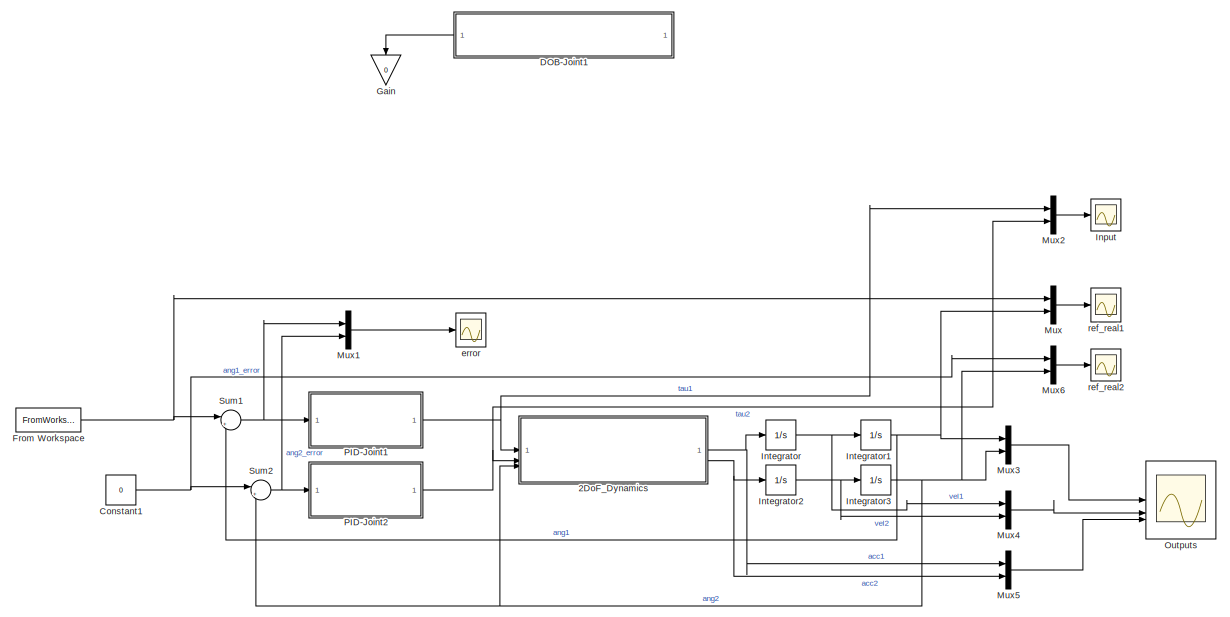
[diagram: root canvas - part 1/3, top center region]
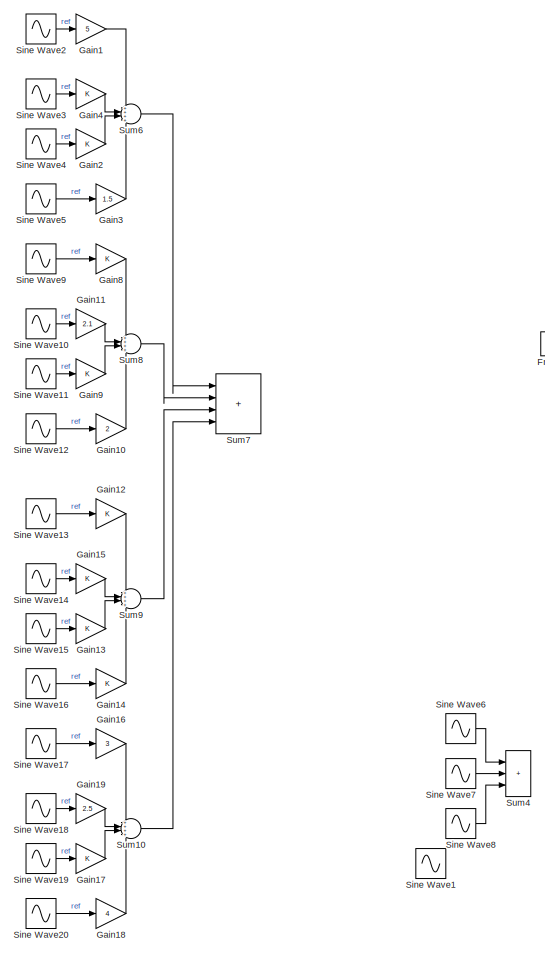
[diagram: root canvas - part 2/3, middle left region]
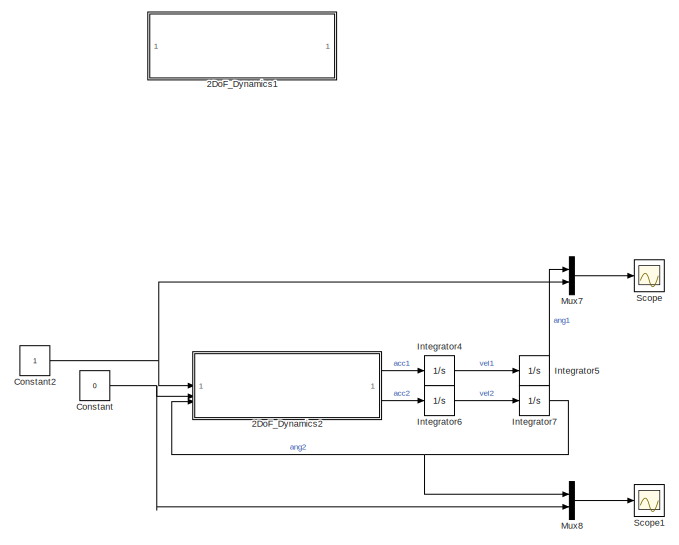
[diagram: root canvas - part 3/3, bottom center region]
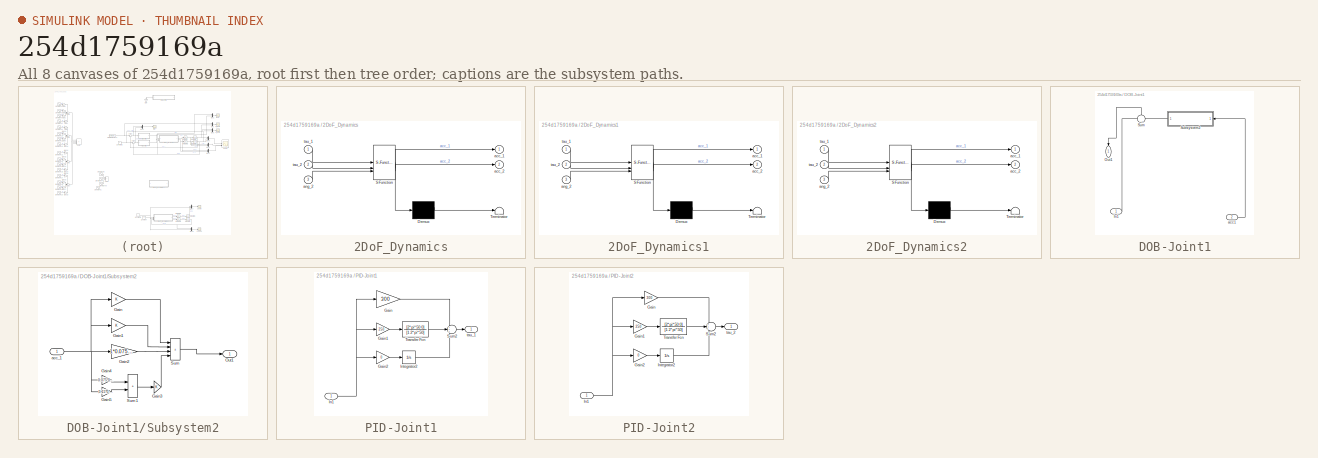
[diagram: thumbnail index - all 8 canvases of the model, root first then tree order]
MODEL slx_254d1759169a
KIND model
CONFIG AbsTol = auto
CONFIG EnableMultiTasking = off
CONFIG FixedStep = 0.0001
CONFIG MaxStep = auto
CONFIG MinStep = auto
CONFIG RelTol = 1e-3
CONFIG SampleTimeConstraint = Unconstrained
CONFIG SolverName = FixedStepAuto
CONFIG StartTime = 0.0
CONFIG StopTime = 10.0
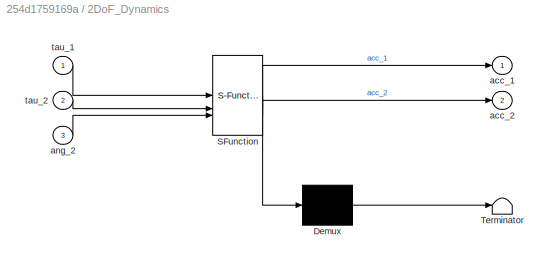
BLOCK [SubSystem] 2DoF_Dynamics
  ErrorFcn = Stateflow.Translate.translate
  PermitHierarchicalResolution = ExplicitOnly
  SFBlockType = MATLAB Function
  TreatAsAtomicUnit = on
BLOCK [Demux] 2DoF_Dynamics/ Demux 
  Outputs = 1
BLOCK [S-Function] 2DoF_Dynamics/ SFunction 
  EnableBusSupport = on
  FunctionName = sf_sfun
  PortCounts = [3 3]
  SFcnIsStateOwnerBlock = off
  SFunctionDeploymentMode = off
  Tag = Stateflow S-Function 2
BLOCK [Terminator] 2DoF_Dynamics/ Terminator 
BLOCK [Outport] 2DoF_Dynamics/acc_1
BLOCK [Outport] 2DoF_Dynamics/acc_2
  Port = 2
BLOCK [Inport] 2DoF_Dynamics/ang_2
  Port = 3
BLOCK [Inport] 2DoF_Dynamics/tau_1
BLOCK [Inport] 2DoF_Dynamics/tau_2
  Port = 2
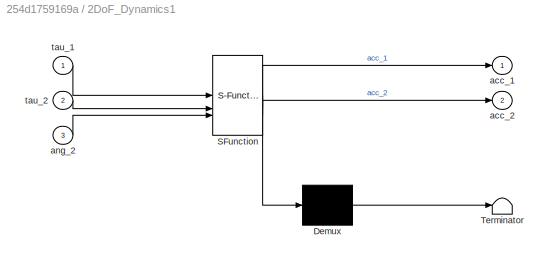
BLOCK [SubSystem] 2DoF_Dynamics1
  Commented = on
  ErrorFcn = Stateflow.Translate.translate
  PermitHierarchicalResolution = ExplicitOnly
  SFBlockType = MATLAB Function
  TreatAsAtomicUnit = on
BLOCK [Demux] 2DoF_Dynamics1/ Demux 
  Outputs = 1
BLOCK [S-Function] 2DoF_Dynamics1/ SFunction 
  EnableBusSupport = on
  FunctionName = sf_sfun
  PortCounts = [3 3]
  SFcnIsStateOwnerBlock = off
  SFunctionDeploymentMode = off
  Tag = Stateflow S-Function 1
BLOCK [Terminator] 2DoF_Dynamics1/ Terminator 
BLOCK [Outport] 2DoF_Dynamics1/acc_1
BLOCK [Outport] 2DoF_Dynamics1/acc_2
  Port = 2
BLOCK [Inport] 2DoF_Dynamics1/ang_2
  Port = 3
BLOCK [Inport] 2DoF_Dynamics1/tau_1
BLOCK [Inport] 2DoF_Dynamics1/tau_2
  Port = 2
BLOCK [SubSystem] 2DoF_Dynamics2
  Commented = on
  ErrorFcn = Stateflow.Translate.translate
  PermitHierarchicalResolution = ExplicitOnly
  SFBlockType = MATLAB Function
  TreatAsAtomicUnit = on
BLOCK [Demux] 2DoF_Dynamics2/ Demux 
  Outputs = 1
BLOCK [S-Function] 2DoF_Dynamics2/ SFunction 
  EnableBusSupport = on
  FunctionName = sf_sfun
  PortCounts = [3 3]
  SFcnIsStateOwnerBlock = off
  SFunctionDeploymentMode = off
  Tag = Stateflow S-Function 3
BLOCK [Terminator] 2DoF_Dynamics2/ Terminator 
BLOCK [Outport] 2DoF_Dynamics2/acc_1
BLOCK [Outport] 2DoF_Dynamics2/acc_2
  Port = 2
BLOCK [Inport] 2DoF_Dynamics2/ang_2
  Port = 3
BLOCK [Inport] 2DoF_Dynamics2/tau_1
BLOCK [Inport] 2DoF_Dynamics2/tau_2
  Port = 2
BLOCK [Constant] Constant
  Commented = on
  Value = 0
BLOCK [Constant] Constant1
  Value = 0
BLOCK [Constant] Constant2
  Commented = on
BLOCK [SubSystem] DOB-Joint1
  Commented = on
  PortSchema = {"entries":[{"content":{"sides":[{"content":{"connectorIds":["Out1","In1"]},"type":"ConnectorPlacement.EquallySpacedRectSide","uuid":"aed64ee6-890a-40cf-96da-aa5fbca5e20d"},{"content":{"connectorIds":["In2"],"side":"RIGHT"},"type":"ConnectorPlacement.EquallySpacedRectSide","uuid":"6cb1d59b-7b2e-4e62-91b9-34dc0f1a000d"},{"content":{"connectorIds":[],"side":"TOP"},"type":"ConnectorPlacement.EquallyS...<+390ch>
BLOCK [Inport] DOB-Joint1/In1
BLOCK [Outport] DOB-Joint1/Out1
  NameLocation = left
BLOCK [SubSystem] DOB-Joint1/Subsystem2
  NameLocation = top
BLOCK [Gain] DOB-Joint1/Subsystem2/Gain
BLOCK [Gain] DOB-Joint1/Subsystem2/Gain1
BLOCK [Gain] DOB-Joint1/Subsystem2/Gain2
  Gain = 1*0.075*0.075
BLOCK [Gain] DOB-Joint1/Subsystem2/Gain3
BLOCK [Gain] DOB-Joint1/Subsystem2/Gain4
  Gain = 0.075*0.075
BLOCK [Gain] DOB-Joint1/Subsystem2/Gain5
  Gain = 0.15*0.15
BLOCK [Outport] DOB-Joint1/Subsystem2/Out1
BLOCK [Sum] DOB-Joint1/Subsystem2/Sum
  IconShape = rectangular
  Inputs = ++++
BLOCK [Sum] DOB-Joint1/Subsystem2/Sum1
  IconShape = rectangular
BLOCK [Inport] DOB-Joint1/Subsystem2/acc_1
BLOCK [Sum] DOB-Joint1/Sum
  Inputs = -+
  NameLocation = right
BLOCK [Inport] DOB-Joint1/acc1
  Port = 2
BLOCK [FromWorkspace] From Workspace
  OutDataTypeStr = double
  SampleTime = 0.001
  VariableName = q_opt_tw
BLOCK [Gain] Gain
  Commented = on
  Gain = 0
  NameLocation = left
BLOCK [Gain] Gain1
  Commented = on
  Gain = 5
BLOCK [Gain] Gain10
  Commented = on
  Gain = 2
BLOCK [Gain] Gain11
  Commented = on
  Gain = 2.1
BLOCK [Gain] Gain12
  Commented = on
BLOCK [Gain] Gain13
  Commented = on
BLOCK [Gain] Gain14
  Commented = on
BLOCK [Gain] Gain15
  Commented = on
BLOCK [Gain] Gain16
  Commented = on
  Gain = 3
BLOCK [Gain] Gain17
  Commented = on
BLOCK [Gain] Gain18
  Commented = on
  Gain = 4
BLOCK [Gain] Gain19
  Commented = on
  Gain = 2.5
BLOCK [Gain] Gain2
  Commented = on
BLOCK [Gain] Gain3
  Commented = on
  Gain = 1.5
BLOCK [Gain] Gain4
  Commented = on
BLOCK [Gain] Gain8
  Commented = on
BLOCK [Gain] Gain9
  Commented = on
BLOCK [Scope] Input
  Floating = off
  NumInputPorts = 1
  ScopeSpecificationString = Simulink.scopes.TimeScopeBlockCfg('CurrentConfiguration', extmgr.ConfigurationSet(extmgr.Configuration('Core','General UI',true),extmgr.Configuration('Core','Source UI',true),extmgr.Configuration('Sources','WiredSimulink',true,'SampleTime','.001','DataLoggingVariableName','ScopeData2','DataLogging',true),extmgr.Configuration('Visuals','Time Domain',true,'SerializedDisplays',{struct('MinYLimReal','...<+1523ch>
BLOCK [Integrator] Integrator
BLOCK [Integrator] Integrator1
BLOCK [Integrator] Integrator2
BLOCK [Integrator] Integrator3
BLOCK [Integrator] Integrator4
  Commented = on
BLOCK [Integrator] Integrator5
  Commented = on
BLOCK [Integrator] Integrator6
  Commented = on
BLOCK [Integrator] Integrator7
  Commented = on
BLOCK [Mux] Mux
  DisplayOption = bar
  Inputs = 2
BLOCK [Mux] Mux1
  DisplayOption = bar
  Inputs = 2
BLOCK [Mux] Mux2
  DisplayOption = bar
  Inputs = 2
BLOCK [Mux] Mux3
  DisplayOption = bar
  Inputs = 2
BLOCK [Mux] Mux4
  DisplayOption = bar
  Inputs = 2
BLOCK [Mux] Mux5
  DisplayOption = bar
  Inputs = 2
BLOCK [Mux] Mux6
  DisplayOption = bar
  Inputs = 2
BLOCK [Mux] Mux7
  Commented = on
  DisplayOption = bar
  Inputs = 2
BLOCK [Mux] Mux8
  Commented = on
  DisplayOption = bar
  Inputs = 2
BLOCK [Scope] Outputs
  Floating = off
  NumInputPorts = 3
  ScopeSpecificationString = Simulink.scopes.TimeScopeBlockCfg('CurrentConfiguration', extmgr.ConfigurationSet(extmgr.Configuration('Core','General UI',true),extmgr.Configuration('Core','Source UI',true),extmgr.Configuration('Sources','WiredSimulink',true,'SampleTime','.001','DataLogging',true),extmgr.Configuration('Visuals','Time Domain',true,'SerializedDisplays',{struct('MinYLimReal','-0.66048','MaxYLimReal','0.65909','YLab...<+2740ch>
BLOCK [SubSystem] PID-Joint1
BLOCK [Gain] PID-Joint1/Gain
  Gain = 300
BLOCK [Gain] PID-Joint1/Gain1
  Gain = 250
BLOCK [Gain] PID-Joint1/Gain2
  Commented = on
  Gain = 0
BLOCK [Inport] PID-Joint1/In1
BLOCK [Integrator] PID-Joint1/Integrator2
  Commented = on
BLOCK [Sum] PID-Joint1/Sum2
  Inputs = +++
BLOCK [TransferFcn] PID-Joint1/Transfer Fcn
  Denominator = [1 2*pi*50]
  Numerator = [2*pi*50 0]
BLOCK [Outport] PID-Joint1/tau_1
BLOCK [SubSystem] PID-Joint2
BLOCK [Gain] PID-Joint2/Gain
  Gain = 300
BLOCK [Gain] PID-Joint2/Gain1
  Gain = 250
BLOCK [Gain] PID-Joint2/Gain2
  Commented = on
  Gain = 0
BLOCK [Inport] PID-Joint2/In1
BLOCK [Integrator] PID-Joint2/Integrator2
  Commented = on
BLOCK [Sum] PID-Joint2/Sum2
  Inputs = +++
BLOCK [TransferFcn] PID-Joint2/Transfer Fcn
  Denominator = [1 2*pi*50]
  Numerator = [2*pi*50 0]
BLOCK [Outport] PID-Joint2/tau_2
BLOCK [Scope] Scope
  Commented = on
  Floating = off
  NumInputPorts = 1
  ScopeSpecificationString = Simulink.scopes.TimeScopeBlockCfg('CurrentConfiguration', extmgr.ConfigurationSet(extmgr.Configuration('Core','General UI',true),extmgr.Configuration('Core','Source UI',true),extmgr.Configuration('Sources','WiredSimulink',true,'DataLoggingVariableName','ScopeData1'),extmgr.Configuration('Visuals','Time Domain',true,'SerializedDisplays',{struct('MinYLimReal','-2767.45862','MaxYLimReal','5151.12972'...<+1446ch>
BLOCK [Scope] Scope1
  Commented = on
  Floating = off
  NumInputPorts = 1
  ScopeSpecificationString = Simulink.scopes.TimeScopeBlockCfg('CurrentConfiguration', extmgr.ConfigurationSet(extmgr.Configuration('Core','General UI',true),extmgr.Configuration('Core','Source UI',true),extmgr.Configuration('Sources','WiredSimulink',true,'DataLoggingVariableName','ScopeData2'),extmgr.Configuration('Visuals','Time Domain',true,'SerializedDisplays',{struct('MinYLimReal','-25.66832','MaxYLimReal','187.93619','Y...<+1430ch>
BLOCK [Sin] Sine Wave1
  Amplitude = 30*(pi/180)
  Commented = on
  Frequency = 2*pi*0.5
  SampleTime = 0
BLOCK [Sin] Sine Wave10
  Amplitude = 1*(pi/180)
  Commented = on
  Frequency = 0.6*2*pi
  SampleTime = 0
BLOCK [Sin] Sine Wave11
  Amplitude = 2.1*(pi/180)
  Commented = on
  Frequency = 0.7*2*pi
  SampleTime = 0
BLOCK [Sin] Sine Wave12
  Amplitude = 2.2*(pi/180)
  Commented = on
  Frequency = 0.8*2*pi
  SampleTime = 0
BLOCK [Sin] Sine Wave13
  Amplitude = 2*(pi/180)
  Commented = on
  Frequency = 0.9*2*pi
  SampleTime = 0
BLOCK [Sin] Sine Wave14
  Amplitude = 1.9*(pi/180)
  Commented = on
  Frequency = 1*2*pi
  SampleTime = 0
BLOCK [Sin] Sine Wave15
  Amplitude = 1.8*(pi/180)
  Commented = on
  Frequency = 1.1*2*pi
  SampleTime = 0
BLOCK [Sin] Sine Wave16
  Amplitude = 1.7*(pi/180)
  Commented = on
  Frequency = 1.2*2*pi
  SampleTime = 0
BLOCK [Sin] Sine Wave17
  Amplitude = 1.6*(pi/180)
  Commented = on
  Frequency = 1.3*2*pi
  SampleTime = 0
BLOCK [Sin] Sine Wave18
  Amplitude = 1.5*(pi/180)
  Commented = on
  Frequency = 1.4*2*pi
  SampleTime = 0
BLOCK [Sin] Sine Wave19
  Amplitude = 1.3*(pi/180)
  Commented = on
  Frequency = 1.5*2*pi
  SampleTime = 0
BLOCK [Sin] Sine Wave2
  Amplitude = 1*(pi/180)
  Commented = on
  Frequency = 0.1*2*pi
  SampleTime = 0
BLOCK [Sin] Sine Wave20
  Amplitude = 1.2*(pi/180)
  Commented = on
  Frequency = 1.5*2*pi
  SampleTime = 0
BLOCK [Sin] Sine Wave3
  Amplitude = 1.1*(pi/180)
  Commented = on
  Frequency = 0.2*2*pi
  SampleTime = 0
BLOCK [Sin] Sine Wave4
  Amplitude = 2.4*(pi/180)
  Commented = on
  Frequency = 0.3*2*pi
  SampleTime = 0
BLOCK [Sin] Sine Wave5
  Amplitude = 2.5*(pi/180)
  Commented = on
  Frequency = 0.4*2*pi
  SampleTime = 0
BLOCK [Sin] Sine Wave6
  Amplitude = 10*(pi/180)
  Commented = on
  Frequency = 1*2*pi
  SampleTime = 0
BLOCK [Sin] Sine Wave7
  Amplitude = 20*(pi/180)
  Commented = on
  Frequency = 0.8*2*pi
  SampleTime = 0
BLOCK [Sin] Sine Wave8
  Amplitude = 2*(pi/180)
  Commented = on
  Frequency = 0.5*2*pi
  SampleTime = 0
BLOCK [Sin] Sine Wave9
  Amplitude = 2.3*(pi/180)
  Commented = on
  Frequency = 0.5*2*pi
  SampleTime = 0
BLOCK [Sum] Sum1
  Inputs = |+-
BLOCK [Sum] Sum10
  Commented = on
  Inputs = ++++
BLOCK [Sum] Sum2
  Inputs = |+-
BLOCK [Sum] Sum4
  Commented = on
  IconShape = rectangular
  Inputs = +++
BLOCK [Sum] Sum6
  Commented = on
  Inputs = ++++
BLOCK [Sum] Sum7
  Commented = on
  IconShape = rectangular
  Inputs = |++++
BLOCK [Sum] Sum8
  Commented = on
  Inputs = ++++
BLOCK [Sum] Sum9
  Commented = on
  Inputs = ++++
BLOCK [Scope] error
  Floating = off
  NumInputPorts = 1
  ScopeSpecificationString = Simulink.scopes.TimeScopeBlockCfg('CurrentConfiguration', extmgr.ConfigurationSet(extmgr.Configuration('Core','General UI',true),extmgr.Configuration('Core','Source UI',true),extmgr.Configuration('Sources','WiredSimulink',true,'SampleTime','.001','DataLoggingVariableName','ScopeData2'),extmgr.Configuration('Visuals','Time Domain',true,'SerializedDisplays',{struct('MinYLimReal','-0.43106','MaxYLimR...<+1477ch>
BLOCK [Scope] ref_real1
  Floating = off
  NumInputPorts = 1
  ScopeSpecificationString = Simulink.scopes.TimeScopeBlockCfg('CurrentConfiguration', extmgr.ConfigurationSet(extmgr.Configuration('Core','General UI',true),extmgr.Configuration('Core','Source UI',true),extmgr.Configuration('Sources','WiredSimulink',true,'SampleTime','.001','DataLoggingVariableName','ScopeData1'),extmgr.Configuration('Visuals','Time Domain',true,'SerializedDisplays',{struct('MinYLimReal','-0.66793','MaxYLimR...<+1554ch>
BLOCK [Scope] ref_real2
  Floating = off
  NumInputPorts = 1
  ScopeSpecificationString = Simulink.scopes.TimeScopeBlockCfg('CurrentConfiguration', extmgr.ConfigurationSet(extmgr.Configuration('Core','General UI',true),extmgr.Configuration('Core','Source UI',true),extmgr.Configuration('Sources','WiredSimulink',true,'SampleTime','.001','DataLoggingVariableName','ScopeData4'),extmgr.Configuration('Visuals','Time Domain',true,'SerializedDisplays',{struct('MinYLimReal','-0.66268','MaxYLimR...<+1488ch>
LINE 2DoF_Dynamics2:1 -> Integrator4:1
LINE 2DoF_Dynamics2:2 -> Integrator6:1
NET 2DoF_Dynamics:1 -> Integrator:1, Mux5:1
NET 2DoF_Dynamics:2 -> Integrator2:1, Mux5:2
NET Constant1:1 -> Mux6:1, Sum2:1
NET Constant2:1 -> 2DoF_Dynamics2:1, Mux7:2
NET Constant:1 -> 2DoF_Dynamics2:2, Mux8:2
LINE DOB-Joint1/In1:1 -> DOB-Joint1/Sum:1
LINE DOB-Joint1/Subsystem2/Gain1:1 -> DOB-Joint1/Subsystem2/Sum:2
LINE DOB-Joint1/Subsystem2/Gain2:1 -> DOB-Joint1/Subsystem2/Sum:3
LINE DOB-Joint1/Subsystem2/Gain3:1 -> DOB-Joint1/Subsystem2/Sum:4
LINE DOB-Joint1/Subsystem2/Gain4:1 -> DOB-Joint1/Subsystem2/Sum1:1
LINE DOB-Joint1/Subsystem2/Gain5:1 -> DOB-Joint1/Subsystem2/Sum1:2
LINE DOB-Joint1/Subsystem2/Gain:1 -> DOB-Joint1/Subsystem2/Sum:1
LINE DOB-Joint1/Subsystem2/Sum1:1 -> DOB-Joint1/Subsystem2/Gain3:1
LINE DOB-Joint1/Subsystem2/Sum:1 -> DOB-Joint1/Subsystem2/Out1:1
NET DOB-Joint1/Subsystem2/acc_1:1 -> DOB-Joint1/Subsystem2/Gain1:1, DOB-Joint1/Subsystem2/Gain2:1, DOB-Joint1/Subsystem2/Gain4:1, DOB-Joint1/Subsystem2/Gain5:1, DOB-Joint1/Subsystem2/Gain:1
LINE DOB-Joint1/Subsystem2:1 -> DOB-Joint1/Sum:2
LINE DOB-Joint1/Sum:1 -> DOB-Joint1/Out1:1
LINE DOB-Joint1/acc1:1 -> DOB-Joint1/Subsystem2:1
LINE DOB-Joint1:1 -> Gain:1
NET From Workspace:1 -> Mux:1, Sum1:1
LINE Gain10:1 -> Sum8:4
LINE Gain11:1 -> Sum8:2
LINE Gain12:1 -> Sum9:1
LINE Gain13:1 -> Sum9:3
LINE Gain14:1 -> Sum9:4
LINE Gain15:1 -> Sum9:2
LINE Gain16:1 -> Sum10:1
LINE Gain17:1 -> Sum10:3
LINE Gain18:1 -> Sum10:4
LINE Gain19:1 -> Sum10:2
LINE Gain1:1 -> Sum6:1
LINE Gain2:1 -> Sum6:3
LINE Gain3:1 -> Sum6:4
LINE Gain4:1 -> Sum6:2
LINE Gain8:1 -> Sum8:1
LINE Gain9:1 -> Sum8:3
NET Integrator1:1 -> Mux3:1, Mux:2, Sum1:2
NET Integrator2:1 -> Integrator3:1, Mux4:2
NET Integrator3:1 -> 2DoF_Dynamics:3, Mux3:2, Mux6:2, Sum2:2
LINE Integrator4:1 -> Integrator5:1
LINE Integrator5:1 -> Mux7:1
LINE Integrator6:1 -> Integrator7:1
NET Integrator7:1 -> 2DoF_Dynamics2:3, Mux8:1
NET Integrator:1 -> Integrator1:1, Mux4:1
LINE Mux1:1 -> error:1
LINE Mux2:1 -> Input:1
LINE Mux3:1 -> Outputs:1
LINE Mux4:1 -> Outputs:2
LINE Mux5:1 -> Outputs:3
LINE Mux6:1 -> ref_real2:1
LINE Mux7:1 -> Scope:1
LINE Mux8:1 -> Scope1:1
LINE Mux:1 -> ref_real1:1
LINE PID-Joint1/Gain1:1 -> PID-Joint1/Transfer Fcn:1
LINE PID-Joint1/Gain2:1 -> PID-Joint1/Integrator2:1
LINE PID-Joint1/Gain:1 -> PID-Joint1/Sum2:1
NET PID-Joint1/In1:1 -> PID-Joint1/Gain1:1, PID-Joint1/Gain2:1, PID-Joint1/Gain:1
LINE PID-Joint1/Integrator2:1 -> PID-Joint1/Sum2:3
LINE PID-Joint1/Sum2:1 -> PID-Joint1/tau_1:1
LINE PID-Joint1/Transfer Fcn:1 -> PID-Joint1/Sum2:2
NET PID-Joint1:1 -> 2DoF_Dynamics:1, Mux2:1
LINE PID-Joint2/Gain1:1 -> PID-Joint2/Transfer Fcn:1
LINE PID-Joint2/Gain2:1 -> PID-Joint2/Integrator2:1
LINE PID-Joint2/Gain:1 -> PID-Joint2/Sum2:1
NET PID-Joint2/In1:1 -> PID-Joint2/Gain1:1, PID-Joint2/Gain2:1, PID-Joint2/Gain:1
LINE PID-Joint2/Integrator2:1 -> PID-Joint2/Sum2:3
LINE PID-Joint2/Sum2:1 -> PID-Joint2/tau_2:1
LINE PID-Joint2/Transfer Fcn:1 -> PID-Joint2/Sum2:2
NET PID-Joint2:1 -> 2DoF_Dynamics:2, Mux2:2
LINE Sine Wave10:1 -> Gain11:1
LINE Sine Wave11:1 -> Gain9:1
LINE Sine Wave12:1 -> Gain10:1
LINE Sine Wave13:1 -> Gain12:1
LINE Sine Wave14:1 -> Gain15:1
LINE Sine Wave15:1 -> Gain13:1
LINE Sine Wave16:1 -> Gain14:1
LINE Sine Wave17:1 -> Gain16:1
LINE Sine Wave18:1 -> Gain19:1
LINE Sine Wave19:1 -> Gain17:1
LINE Sine Wave20:1 -> Gain18:1
LINE Sine Wave2:1 -> Gain1:1
LINE Sine Wave3:1 -> Gain4:1
LINE Sine Wave4:1 -> Gain2:1
LINE Sine Wave5:1 -> Gain3:1
LINE Sine Wave6:1 -> Sum4:1
LINE Sine Wave7:1 -> Sum4:2
LINE Sine Wave8:1 -> Sum4:3
LINE Sine Wave9:1 -> Gain8:1
LINE Sum10:1 -> Sum7:4
NET Sum1:1 -> Mux1:1, PID-Joint1:1
NET Sum2:1 -> Mux1:2, PID-Joint2:1
LINE Sum6:1 -> Sum7:1
LINE Sum8:1 -> Sum7:2
LINE Sum9:1 -> Sum7:3
note: NET lines group one-source signal fan-out (src -> all destinations, sorted); 1:1 wires keep LINE
CHART 2DoF_Dynamics1 states=1 transitions=1
  STATE_LABEL 'eML_blk_kernel()'
  STATE_LABEL 'SCRIPT:\nfunction [acc_1, acc_2] = TDoF_Dynamics_func(tau_1, tau_2, ang_2)\n    % Parameters\n    J1 = 1;\n    J2 = 1;\n    l1 = 0.15;\n    m2 = 1;\n    d1 = 0.075;\n    d2 = 0.075;\n    \n    D = (J2+m2*d2^2)*(J1+J2+m2*d1^2+m2*(2*l1*d2*cos(ang_2)+l1^2+d2^2))-(J2+m2*(l1*d2*cos(ang_2)+d2^2))^2;\n    \n    acc_1 = ((J2+m2*d2^2)*tau_1+(-J2-m2*(l1*d2*cos(ang_2)+d2^2))*tau_2)/D;\n    acc_2 = ((-J2-m2*(l1*d2*cos(ang...<+80ch>'
CHART 2DoF_Dynamics states=1 transitions=1
  STATE_LABEL 'eML_blk_kernel()'
  STATE_LABEL 'SCRIPT:\nfunction [acc_1, acc_2] = TDoF_Dynamics_func(tau_1, tau_2, ang_2)\n    % Parameters\n    J1 = 1;\n    J2 = 1;\n    l1 = 0.15;\n    m2 = 1;\n    d1 = 0.075;\n    d2 = 0.075;\n    \n    D = (J2+m2*d2^2)*(J1+J2+m2*d1^2+m2*(2*l1*d2*cos(ang_2)+l1^2+d2^2))-(J2+m2*(l1*d2*cos(ang_2)+d2^2))^2;\n    \n    acc_1 = ((J2+m2*d2^2)*tau_1+(-J2-m2*(l1*d2*cos(ang_2)+d2^2))*tau_2)/D;\n    acc_2 = ((-J2-m2*(l1*d2*cos(ang...<+80ch>'
CHART 2DoF_Dynamics2 states=1 transitions=1
  STATE_LABEL 'eML_blk_kernel()'
  STATE_LABEL 'SCRIPT:\nfunction [acc_1, acc_2] = TDoF_Dynamics_func(tau_1, tau_2, ang_2)\n    % Parameters\n    J1 = 1;\n    J2 = 1;\n    m2 = 1;\n\n    l1 = 0.15;\n    d2 = 0.075;\n    \n    D = J2*(J1*J2+m2*l1^2+2*m2*l1*d2*cos(ang_2))-(J2+m2*l1*d2*cos(ang_2))^2;\n    \n    acc_1 = (J2*tau_1+(-J2-m2*l1*d2*cos(ang_2))*tau_2)/D;\n    acc_2 = ((-J2-m2*l1*d2*cos(ang_2))*tau_1+(J1*J2+m2*l1^2*d2*cos(ang_2))*tau_2)/D;\nend\n'
CHART  states=0 transitions=0
CHART  states=0 transitions=0
CHART  states=0 transitions=0
